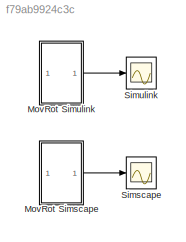
MODEL slx_f79ab9924c3c
KIND model
CONFIG AbsTol = auto
CONFIG EnableMultiTasking = off
CONFIG FixedStep = auto
CONFIG MaxStep = 0.01
CONFIG MinStep = auto
CONFIG RelTol = 1e-3
CONFIG SampleTimeConstraint = Unconstrained
CONFIG SolverName = VariableStepAuto
CONFIG StartTime = 0.0
CONFIG StopTime = 10.0
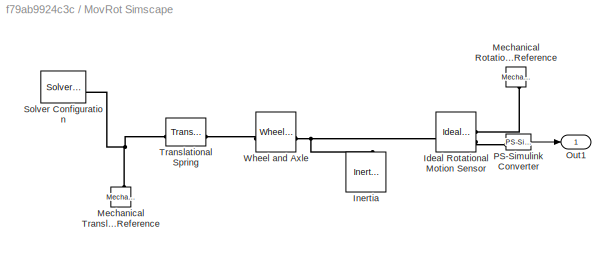
BLOCK [SubSystem] MovRot Simscape
BLOCK [Reference] MovRot Simscape/Ideal Rotational Motion Sensor  REF=fl_lib/Mechanical/Mechanical Sensors/Ideal Rotational
Motion Sensor
  SourceBlock = fl_lib/Mechanical/Mechanical Sensors/Ideal Rotational\nMotion Sensor
  SourceType = Ideal Rotational\nMotion Sensor
BLOCK [Reference] MovRot Simscape/Inertia  REF=fl_lib/Mechanical/Rotational Elements/Inertia
  NameLocation = right
  SourceBlock = fl_lib/Mechanical/Rotational Elements/Inertia
  SourceType = Inertia
BLOCK [Reference] MovRot Simscape/Mechanical Rotational Reference  REF=fl_lib/Mechanical/Rotational Elements/Mechanical
Rotational Reference
  NameLocation = left
  SourceBlock = fl_lib/Mechanical/Rotational Elements/Mechanical\nRotational Reference
  SourceType = Mechanical\nRotational Reference
BLOCK [Reference] MovRot Simscape/Mechanical Translational Reference  REF=fl_lib/Mechanical/Translational
Elements/Mechanical
Translational
Reference
  NameLocation = right
  SourceBlock = fl_lib/Mechanical/Translational\nElements/Mechanical\nTranslational\nReference
  SourceType = Mechanical\nTranslational\nReference
BLOCK [Outport] MovRot Simscape/Out1
BLOCK [Reference] MovRot Simscape/PS-Simulink Converter  REF=nesl_utility/PS-Simulink
Converter
  SourceBlock = nesl_utility/PS-Simulink\nConverter
  SourceType = PS-Simulink\nConverter
BLOCK [Reference] MovRot Simscape/Solver Configuration  REF=nesl_utility/Solver
Configuration
  SourceBlock = nesl_utility/Solver\nConfiguration
  SourceType = Solver\nConfiguration
BLOCK [Reference] MovRot Simscape/Translational Spring  REF=fl_lib/Mechanical/Translational
Elements/Translational Spring
  SourceBlock = fl_lib/Mechanical/Translational\nElements/Translational Spring
  SourceType = Translational Spring
BLOCK [Reference] MovRot Simscape/Wheel and Axle  REF=fl_lib/Mechanical/Mechanisms/Wheel and Axle
  NameLocation = top
  SourceBlock = fl_lib/Mechanical/Mechanisms/Wheel and Axle
  SourceType = Wheel and Axle
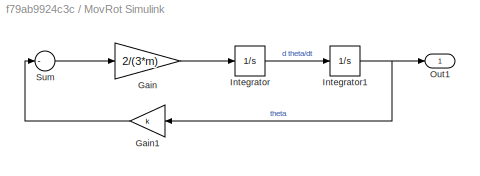
BLOCK [SubSystem] MovRot Simulink
BLOCK [Gain] MovRot Simulink/Gain
  Gain = 2/(3*m)
BLOCK [Gain] MovRot Simulink/Gain1
  Gain = k
BLOCK [Integrator] MovRot Simulink/Integrator
  InitialCondition = 2
BLOCK [Integrator] MovRot Simulink/Integrator1
BLOCK [Outport] MovRot Simulink/Out1
BLOCK [Sum] MovRot Simulink/Sum
  Inputs = -
BLOCK [Scope] Simscape
  Floating = off
  NumInputPorts = 1
  ScopeSpecificationString = Simulink.scopes.TimeScopeBlockCfg('CurrentConfiguration', extmgr.ConfigurationSet(extmgr.Configuration('Core','General UI',true),extmgr.Configuration('Core','Source UI',true),extmgr.Configuration('Sources','WiredSimulink',true),extmgr.Configuration('Visuals','Time Domain',true,'SerializedDisplays',{struct('MinYLimReal','-0.96824','MaxYLimReal','0.96824','YLabelReal','','MinYLimMag','0.00000','MaxY...<+1367ch>
BLOCK [Scope] Simulink
  Floating = off
  NumInputPorts = 1
  ScopeSpecificationString = Simulink.scopes.TimeScopeBlockCfg('CurrentConfiguration', extmgr.ConfigurationSet(extmgr.Configuration('Core','General UI',true),extmgr.Configuration('Core','Source UI',true),extmgr.Configuration('Sources','WiredSimulink',true,'DataLoggingVariableName','ScopeData1'),extmgr.Configuration('Visuals','Time Domain',true,'SerializedDisplays',{struct('MinYLimReal','-0.96824','MaxYLimReal','0.96824','YLab...<+1407ch>
LINE MovRot Simscape/PS-Simulink Converter:1 -> MovRot Simscape/Out1:1
LINE MovRot Simscape:1 -> Simscape:1
LINE MovRot Simulink/Gain1:1 -> MovRot Simulink/Sum:1
LINE MovRot Simulink/Gain:1 -> MovRot Simulink/Integrator:1
NET MovRot Simulink/Integrator1:1 -> MovRot Simulink/Gain1:1, MovRot Simulink/Out1:1
LINE MovRot Simulink/Integrator:1 -> MovRot Simulink/Integrator1:1
LINE MovRot Simulink/Sum:1 -> MovRot Simulink/Gain:1
LINE MovRot Simulink:1 -> Simulink:1
PNET net1: MovRot Simscape/Ideal Rotational Motion Sensor:LConn1 -- MovRot Simscape/Inertia:LConn1 -- MovRot Simscape/Wheel and Axle:LConn1
PLINE MovRot Simscape/Ideal Rotational Motion Sensor:RConn1 -- MovRot Simscape/Mechanical Rotational Reference:LConn1
PLINE MovRot Simscape/Ideal Rotational Motion Sensor:RConn2 -- MovRot Simscape/PS-Simulink Converter:LConn1
PNET net2: MovRot Simscape/Mechanical Translational Reference:LConn1 -- MovRot Simscape/Solver Configuration:RConn1 -- MovRot Simscape/Translational Spring:LConn1
PLINE MovRot Simscape/Translational Spring:RConn1 -- MovRot Simscape/Wheel and Axle:RConn1
note: NET lines group one-source signal fan-out (src -> all destinations, sorted); 1:1 wires keep LINE; PNET lines group multi-terminal physical nets as a canonical sorted terminal list (undirected conserving connections); 2-terminal nets keep the pairwise PLINE form
